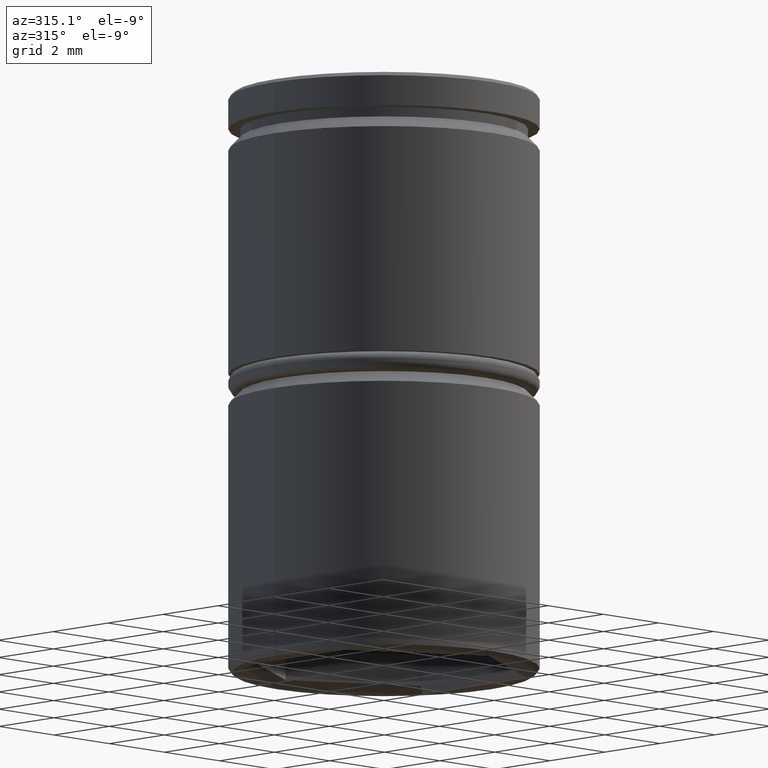
[diagram: clean part render]
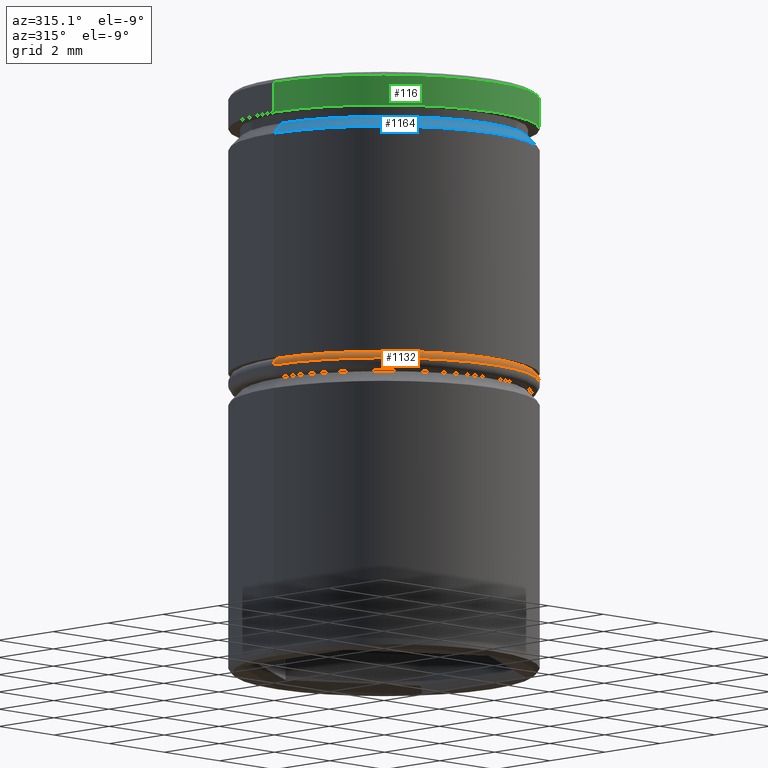
[diagram: same view with three faces highlighted in distinct colors, each labeled with its STEP entity id]
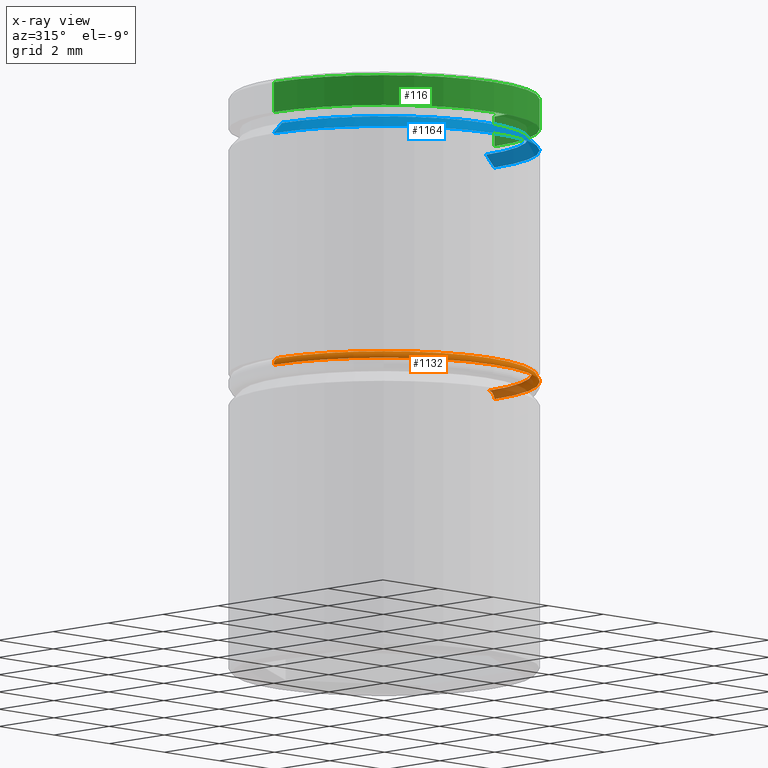
[diagram: x-ray of the same camera — body ghosted, the three highlighted faces saturated]
A machine part, auxiliary view with three faces highlighted in distinct colors.
The next image is the same camera in x-ray (body ghosted, the three faces saturated) — at least one of them is partly hidden behind the body in this view.
Their STEP definitions:

[orange] entity #1132 — the highlighted toroidal blend (fillet) surface has major radius 3.8 mm and minor (blend) radius 0.2 mm.
#3 = DIRECTION ( 'NONE',  ( -0.000000000000000000, -0.000000000000000000, 1.000000000000000000 ) ) ;
#10 = ORIENTED_EDGE ( 'NONE', *, *, #493, .T. ) ;
#11 = DIRECTION ( 'NONE',  ( -1.000000000000000000, 0.000000000000000000, 0.000000000000000000 ) ) ;
#33 = CIRCLE ( 'NONE', #1029, 3.799999999999999822 ) ;
#75 = DIRECTION ( 'NONE',  ( -1.224646799147353207E-16, 1.000000000000000000, 0.000000000000000000 ) ) ;
#107 = ORIENTED_EDGE ( 'NONE', *, *, #509, .F. ) ;
#157 = CIRCLE ( 'NONE', #582, 4.000000000000000000 ) ;
#158 = DIRECTION ( 'NONE',  ( -1.000000000000000000, -1.224646799147350742E-16, 0.000000000000000000 ) ) ;
#266 = CARTESIAN_POINT ( 'NONE',  ( 4.000000000000000000, 0.000000000000000000, -7.449999999999998401 ) ) ;
#289 = CARTESIAN_POINT ( 'NONE',  ( 0.000000000000000000, 0.000000000000000000, -7.449999999999998401 ) ) ;
#301 = ORIENTED_EDGE ( 'NONE', *, *, #395, .F. ) ;
#311 = TOROIDAL_SURFACE ( 'NONE', #425, 3.799999999999999822, 0.2000000000000000111 ) ;
#394 = FACE_OUTER_BOUND ( 'NONE', #688, .T. ) ;
#395 = EDGE_CURVE ( 'NONE', #486, #600, #1076, .T. ) ;
#396 = CARTESIAN_POINT ( 'NONE',  ( -3.799999999999999822, 0.000000000000000000, -7.249999999999999112 ) ) ;
#425 = AXIS2_PLACEMENT_3D ( 'NONE', #538, #823, #11 ) ;
#466 = CARTESIAN_POINT ( 'NONE',  ( -3.799999999999999822, 0.000000000000000000, -7.449999999999998401 ) ) ;
#479 = CARTESIAN_POINT ( 'NONE',  ( -4.000000000000000000, 4.898587196589412829E-16, -7.449999999999998401 ) ) ;
#486 = VERTEX_POINT ( 'NONE', #650 ) ;
#488 = EDGE_CURVE ( 'NONE', #834, #486, #33, .T. ) ;
#493 = EDGE_CURVE ( 'NONE', #834, #551, #719, .T. ) ;
#509 = EDGE_CURVE ( 'NONE', #600, #551, #157, .T. ) ;
#538 = CARTESIAN_POINT ( 'NONE',  ( 0.000000000000000000, 0.000000000000000000, -7.449999999999998401 ) ) ;
#551 = VERTEX_POINT ( 'NONE', #479 ) ;
#582 = AXIS2_PLACEMENT_3D ( 'NONE', #289, #1091, #644 ) ;
#600 = VERTEX_POINT ( 'NONE', #266 ) ;
#632 = DIRECTION ( 'NONE',  ( -1.000000000000000000, 0.000000000000000000, 0.000000000000000000 ) ) ;
#644 = DIRECTION ( 'NONE',  ( -1.000000000000000000, 0.000000000000000000, 0.000000000000000000 ) ) ;
#650 = CARTESIAN_POINT ( 'NONE',  ( 3.799999999999999822, 4.776122516674677286E-16, -7.249999999999999112 ) ) ;
#688 = EDGE_LOOP ( 'NONE', ( #301, #877, #10, #107 ) ) ;
#699 = AXIS2_PLACEMENT_3D ( 'NONE', #466, #721, #899 ) ;
#719 = CIRCLE ( 'NONE', #699, 0.1999999999999996503 ) ;
#721 = DIRECTION ( 'NONE',  ( -0.000000000000000000, -1.000000000000000000, -0.000000000000000000 ) ) ;
#792 = CARTESIAN_POINT ( 'NONE',  ( 3.799999999999999822, 4.653657836759942730E-16, -7.449999999999998401 ) ) ;
#811 = CARTESIAN_POINT ( 'NONE',  ( 0.000000000000000000, 0.000000000000000000, -7.249999999999999112 ) ) ;
#823 = DIRECTION ( 'NONE',  ( 0.000000000000000000, 0.000000000000000000, -1.000000000000000000 ) ) ;
#834 = VERTEX_POINT ( 'NONE', #396 ) ;
#877 = ORIENTED_EDGE ( 'NONE', *, *, #488, .F. ) ;
#899 = DIRECTION ( 'NONE',  ( 0.000000000000000000, 0.000000000000000000, -1.000000000000000000 ) ) ;
#1014 = AXIS2_PLACEMENT_3D ( 'NONE', #792, #75, #158 ) ;
#1029 = AXIS2_PLACEMENT_3D ( 'NONE', #811, #3, #632 ) ;
#1076 = CIRCLE ( 'NONE', #1014, 0.2000000000000000944 ) ;
#1091 = DIRECTION ( 'NONE',  ( 0.000000000000000000, 0.000000000000000000, -1.000000000000000000 ) ) ;
#1132 = ADVANCED_FACE ( 'NONE', ( #394 ), #311, .T. ) ;

[blue] entity #1164 — the highlighted conical surface has half-angle 45 deg.
#113 = CONICAL_SURFACE ( 'NONE', #459, 3.700000000000005507, 0.7853981633974453924 ) ;
#119 = LINE ( 'NONE', #764, #364 ) ;
#125 = DIRECTION ( 'NONE',  ( 1.000000000000000000, 0.000000000000000000, 0.000000000000000000 ) ) ;
#130 = CARTESIAN_POINT ( 'NONE',  ( -3.700000000000000178, 4.531193156845206201E-16, -1.125000000000000222 ) ) ;
#132 = LINE ( 'NONE', #1035, #1031 ) ;
#232 = EDGE_CURVE ( 'NONE', #397, #1038, #518, .T. ) ;
#246 = FACE_OUTER_BOUND ( 'NONE', #731, .T. ) ;
#364 = VECTOR ( 'NONE', #842, 1000.000000000000000 ) ;
#380 = CIRCLE ( 'NONE', #1131, 3.700000000000000178 ) ;
#397 = VERTEX_POINT ( 'NONE', #427 ) ;
#424 = ORIENTED_EDGE ( 'NONE', *, *, #685, .F. ) ;
#427 = CARTESIAN_POINT ( 'NONE',  ( 4.000000000000000000, 0.000000000000000000, -1.424999999999996492 ) ) ;
#454 = CARTESIAN_POINT ( 'NONE',  ( 0.000000000000000000, 0.000000000000000000, -1.424999999999996492 ) ) ;
#459 = AXIS2_PLACEMENT_3D ( 'NONE', #957, #498, #513 ) ;
#498 = DIRECTION ( 'NONE',  ( 0.000000000000000000, 0.000000000000000000, -1.000000000000000000 ) ) ;
#513 = DIRECTION ( 'NONE',  ( -1.000000000000000000, 0.000000000000000000, 0.000000000000000000 ) ) ;
#518 = CIRCLE ( 'NONE', #1175, 4.000000000000000000 ) ;
#586 = CARTESIAN_POINT ( 'NONE',  ( 3.700000000000000178, 0.000000000000000000, -1.125000000000000222 ) ) ;
#670 = CARTESIAN_POINT ( 'NONE',  ( 0.000000000000000000, 0.000000000000000000, -1.125000000000000222 ) ) ;
#685 = EDGE_CURVE ( 'NONE', #827, #1177, #380, .T. ) ;
#702 = EDGE_CURVE ( 'NONE', #827, #1038, #119, .T. ) ;
#717 = DIRECTION ( 'NONE',  ( 0.000000000000000000, 0.000000000000000000, -1.000000000000000000 ) ) ;
#731 = EDGE_LOOP ( 'NONE', ( #1009, #424, #859, #1109 ) ) ;
#764 = CARTESIAN_POINT ( 'NONE',  ( -3.700000000000005507, 0.000000000000000000, -1.125000000000000222 ) ) ;
#827 = VERTEX_POINT ( 'NONE', #130 ) ;
#842 = DIRECTION ( 'NONE',  ( -0.7071067811865454633, 0.000000000000000000, -0.7071067811865495711 ) ) ;
#859 = ORIENTED_EDGE ( 'NONE', *, *, #702, .T. ) ;
#957 = CARTESIAN_POINT ( 'NONE',  ( 0.000000000000000000, 0.000000000000000000, -1.125000000000000222 ) ) ;
#1008 = EDGE_CURVE ( 'NONE', #1177, #397, #132, .T. ) ;
#1009 = ORIENTED_EDGE ( 'NONE', *, *, #1008, .F. ) ;
#1020 = DIRECTION ( 'NONE',  ( -0.000000000000000000, -0.000000000000000000, 1.000000000000000000 ) ) ;
#1031 = VECTOR ( 'NONE', #1042, 1000.000000000000000 ) ;
#1035 = CARTESIAN_POINT ( 'NONE',  ( 3.700000000000005507, 4.531193156845213103E-16, -1.125000000000000222 ) ) ;
#1038 = VERTEX_POINT ( 'NONE', #1053 ) ;
#1042 = DIRECTION ( 'NONE',  ( 0.7071067811865454633, 8.659560562354908206E-17, -0.7071067811865495711 ) ) ;
#1053 = CARTESIAN_POINT ( 'NONE',  ( -4.000000000000000000, 4.898587196589412829E-16, -1.424999999999996492 ) ) ;
#1077 = DIRECTION ( 'NONE',  ( 1.000000000000000000, 0.000000000000000000, 0.000000000000000000 ) ) ;
#1109 = ORIENTED_EDGE ( 'NONE', *, *, #232, .F. ) ;
#1131 = AXIS2_PLACEMENT_3D ( 'NONE', #670, #1020, #125 ) ;
#1164 = ADVANCED_FACE ( 'NONE', ( #246 ), #113, .T. ) ;
#1175 = AXIS2_PLACEMENT_3D ( 'NONE', #454, #717, #1077 ) ;
#1177 = VERTEX_POINT ( 'NONE', #586 ) ;

[green] entity #116 — the highlighted cylindrical surface (partial cylindrical patch) has radius 4 mm, axis along (-0, -0, 1).
#24 = CARTESIAN_POINT ( 'NONE',  ( 4.000000000000000000, 0.000000000000000000, -0.8749999999999998890 ) ) ;
#52 = EDGE_CURVE ( 'NONE', #1130, #1117, #437, .T. ) ;
#70 = CARTESIAN_POINT ( 'NONE',  ( -4.000000000000000000, 4.898587196589412829E-16, -0.1000000000000028644 ) ) ;
#116 = ADVANCED_FACE ( 'NONE', ( #1069 ), #267, .T. ) ;
#124 = CARTESIAN_POINT ( 'NONE',  ( -4.000000000000000000, 4.898587196589412829E-16, 0.000000000000000000 ) ) ;
#183 = CARTESIAN_POINT ( 'NONE',  ( 0.000000000000000000, 0.000000000000000000, 0.000000000000000000 ) ) ;
#224 = LINE ( 'NONE', #124, #291 ) ;
#235 = ORIENTED_EDGE ( 'NONE', *, *, #805, .F. ) ;
#259 = CARTESIAN_POINT ( 'NONE',  ( 0.000000000000000000, 0.000000000000000000, -0.8749999999999998890 ) ) ;
#267 = CYLINDRICAL_SURFACE ( 'NONE', #420, 4.000000000000000000 ) ;
#279 = DIRECTION ( 'NONE',  ( -0.000000000000000000, -0.000000000000000000, 1.000000000000000000 ) ) ;
#291 = VECTOR ( 'NONE', #302, 1000.000000000000000 ) ;
#300 = CARTESIAN_POINT ( 'NONE',  ( -4.000000000000000000, 4.898587196589412829E-16, -0.8749999999999998890 ) ) ;
#302 = DIRECTION ( 'NONE',  ( -0.000000000000000000, -0.000000000000000000, 1.000000000000000000 ) ) ;
#312 = VECTOR ( 'NONE', #1137, 1000.000000000000000 ) ;
#333 = DIRECTION ( 'NONE',  ( 1.000000000000000000, 0.000000000000000000, 0.000000000000000000 ) ) ;
#344 = DIRECTION ( 'NONE',  ( 1.000000000000000000, 0.000000000000000000, 0.000000000000000000 ) ) ;
#377 = VERTEX_POINT ( 'NONE', #70 ) ;
#399 = EDGE_CURVE ( 'NONE', #1117, #377, #807, .T. ) ;
#405 = CARTESIAN_POINT ( 'NONE',  ( 4.000000000000000000, 0.000000000000000000, -0.1000000000000028644 ) ) ;
#420 = AXIS2_PLACEMENT_3D ( 'NONE', #183, #535, #333 ) ;
#437 = LINE ( 'NONE', #512, #312 ) ;
#440 = AXIS2_PLACEMENT_3D ( 'NONE', #1059, #778, #344 ) ;
#483 = EDGE_CURVE ( 'NONE', #556, #1130, #1052, .T. ) ;
#512 = CARTESIAN_POINT ( 'NONE',  ( 4.000000000000000000, 0.000000000000000000, 0.000000000000000000 ) ) ;
#535 = DIRECTION ( 'NONE',  ( -0.000000000000000000, -0.000000000000000000, 1.000000000000000000 ) ) ;
#556 = VERTEX_POINT ( 'NONE', #300 ) ;
#594 = ORIENTED_EDGE ( 'NONE', *, *, #483, .T. ) ;
#676 = AXIS2_PLACEMENT_3D ( 'NONE', #259, #279, #906 ) ;
#766 = ORIENTED_EDGE ( 'NONE', *, *, #52, .T. ) ;
#778 = DIRECTION ( 'NONE',  ( 0.000000000000000000, 0.000000000000000000, -1.000000000000000000 ) ) ;
#805 = EDGE_CURVE ( 'NONE', #556, #377, #224, .T. ) ;
#807 = CIRCLE ( 'NONE', #440, 4.000000000000000000 ) ;
#854 = EDGE_LOOP ( 'NONE', ( #235, #594, #766, #953 ) ) ;
#906 = DIRECTION ( 'NONE',  ( 1.000000000000000000, 0.000000000000000000, 0.000000000000000000 ) ) ;
#953 = ORIENTED_EDGE ( 'NONE', *, *, #399, .T. ) ;
#1052 = CIRCLE ( 'NONE', #676, 4.000000000000000000 ) ;
#1059 = CARTESIAN_POINT ( 'NONE',  ( 0.000000000000000000, 0.000000000000000000, -0.1000000000000028644 ) ) ;
#1069 = FACE_OUTER_BOUND ( 'NONE', #854, .T. ) ;
#1117 = VERTEX_POINT ( 'NONE', #405 ) ;
#1130 = VERTEX_POINT ( 'NONE', #24 ) ;
#1137 = DIRECTION ( 'NONE',  ( -0.000000000000000000, -0.000000000000000000, 1.000000000000000000 ) ) ;